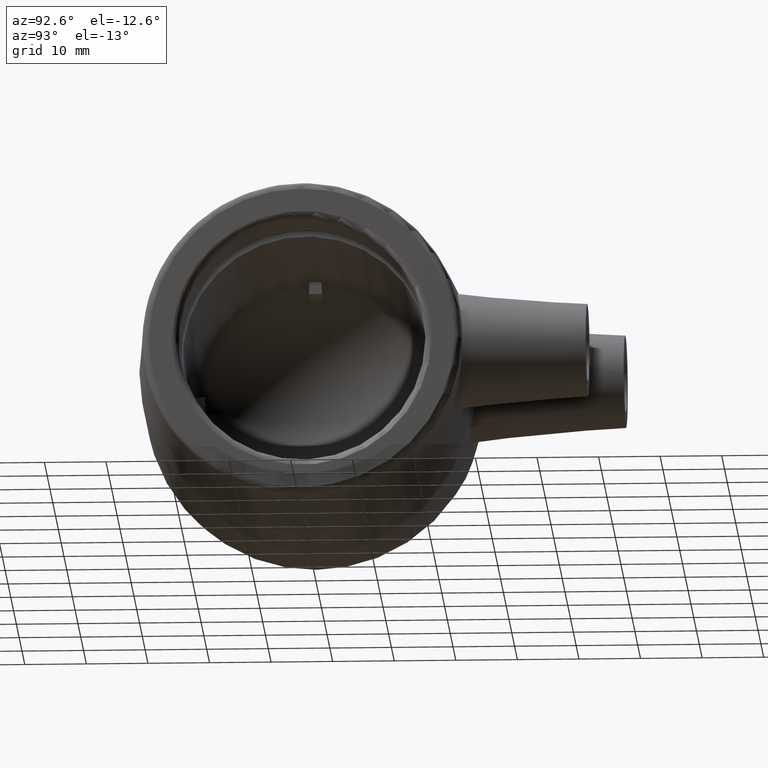
[diagram: clean part render]
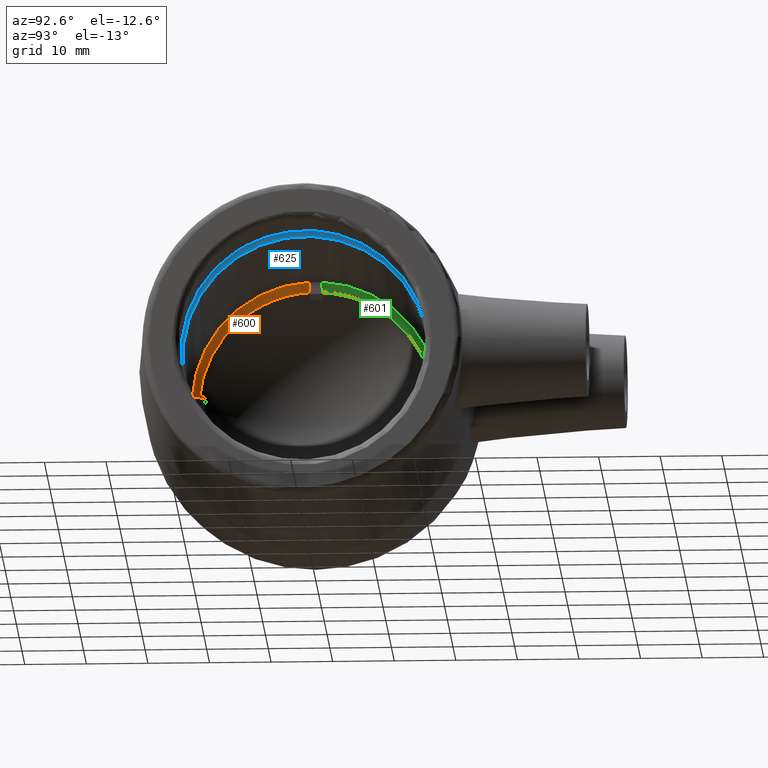
[diagram: same view with three faces highlighted in distinct colors, each labeled with its STEP entity id]
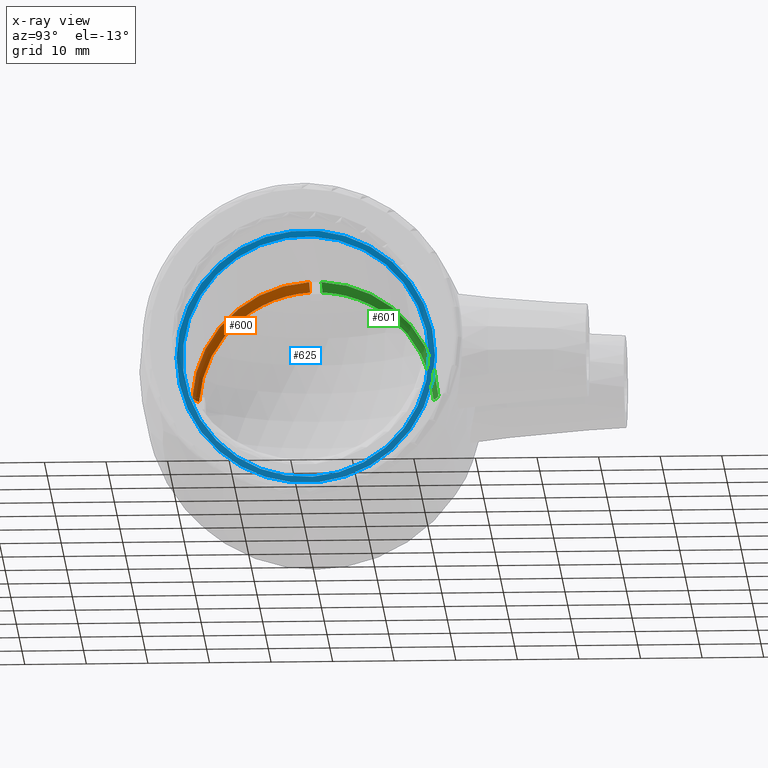
[diagram: x-ray of the same camera — body ghosted, the three highlighted faces saturated]
A machine part, auxiliary view with three faces highlighted in distinct colors.
The next image is the same camera in x-ray (body ghosted, the three faces saturated) — at least one of them is partly hidden behind the body in this view.
Their STEP definitions:

[orange] entity #600 — the highlighted toroidal blend (fillet) surface has major radius 13 mm and minor (blend) radius 7 mm.
#52=TOROIDAL_SURFACE('',#670,13.,7.);
#59=B_SPLINE_CURVE_WITH_KNOTS('',3,(#943,#944,#945,#946,#947,#948,#949,
#950),.UNSPECIFIED.,.F.,.F.,(4,2,2,4),(-0.347072642511362,-0.259029246738456,
-0.129514623369229,0.),.UNSPECIFIED.);
#66=B_SPLINE_CURVE_WITH_KNOTS('',3,(#1071,#1072,#1073,#1074,#1075,#1076,
#1077,#1078),.UNSPECIFIED.,.F.,.F.,(4,2,2,4),(0.,0.129514623369228,0.259029246738456,
0.347072642511361),.UNSPECIFIED.);
#126=FACE_OUTER_BOUND('',#171,.T.);
#171=EDGE_LOOP('',(#477,#478,#479,#480));
#235=CIRCLE('',#659,19.0599334073252);
#244=CIRCLE('',#671,20.);
#271=VERTEX_POINT('',#934);
#274=VERTEX_POINT('',#942);
#294=VERTEX_POINT('',#1044);
#299=VERTEX_POINT('',#1069);
#331=EDGE_CURVE('',#274,#271,#59,.T.);
#360=EDGE_CURVE('',#274,#294,#235,.T.);
#370=EDGE_CURVE('',#271,#299,#244,.T.);
#371=EDGE_CURVE('',#299,#294,#66,.T.);
#477=ORIENTED_EDGE('',*,*,#331,.T.);
#478=ORIENTED_EDGE('',*,*,#370,.T.);
#479=ORIENTED_EDGE('',*,*,#371,.T.);
#480=ORIENTED_EDGE('',*,*,#360,.F.);
#600=ADVANCED_FACE('',(#126),#52,.F.);
#659=AXIS2_PLACEMENT_3D('',#1045,#796,#797);
#670=AXIS2_PLACEMENT_3D('',#1068,#818,#819);
#671=AXIS2_PLACEMENT_3D('',#1070,#820,#821);
#796=DIRECTION('center_axis',(1.,2.83384649210207E-19,0.));
#797=DIRECTION('ref_axis',(0.,0.,-1.));
#818=DIRECTION('center_axis',(1.,2.83384649210207E-19,0.));
#819=DIRECTION('ref_axis',(0.,0.,-1.));
#820=DIRECTION('center_axis',(1.,2.83384649210207E-19,0.));
#821=DIRECTION('ref_axis',(0.,0.,-1.));
#934=CARTESIAN_POINT('',(-48.,-0.999999999999997,19.9749843554382));
#942=CARTESIAN_POINT('',(-51.503884572697,-0.999999999999997,19.0336822893435));
#943=CARTESIAN_POINT('Ctrl Pts',(-51.503884572697,-0.999999999999997,19.0336822893436));
#944=CARTESIAN_POINT('Ctrl Pts',(-51.2292260217304,-0.999999999999997,19.1927103002267));
#945=CARTESIAN_POINT('Ctrl Pts',(-50.9483526266836,-0.999999999999996,19.3297246128762));
#946=CARTESIAN_POINT('Ctrl Pts',(-50.2784246665355,-0.999999999999996,19.6073970664398));
#947=CARTESIAN_POINT('Ctrl Pts',(-49.8265540132172,-0.999999999999996,19.7485651499687));
#948=CARTESIAN_POINT('Ctrl Pts',(-48.9031994603803,-0.999999999999996,19.9323591703308));
#949=CARTESIAN_POINT('Ctrl Pts',(-48.4317154112308,-0.999999999999996,19.9749843554382));
#950=CARTESIAN_POINT('Ctrl Pts',(-48.,-0.999999999999996,19.9749843554382));
#1044=CARTESIAN_POINT('',(-51.503884572697,-19.0336822893435,1.));
#1045=CARTESIAN_POINT('Origin',(-51.503884572697,-1.45954102625967E-17,
0.));
#1068=CARTESIAN_POINT('Origin',(-48.,-1.360246316209E-17,0.));
#1069=CARTESIAN_POINT('',(-48.,-19.9749843554382,1.));
#1070=CARTESIAN_POINT('Origin',(-48.,-1.360246316209E-17,0.));
#1071=CARTESIAN_POINT('Ctrl Pts',(-48.,-19.9749843554382,1.));
#1072=CARTESIAN_POINT('Ctrl Pts',(-48.4317154112308,-19.9749843554382,1.));
#1073=CARTESIAN_POINT('Ctrl Pts',(-48.9031994603803,-19.9323591703308,1.));
#1074=CARTESIAN_POINT('Ctrl Pts',(-49.8265540132172,-19.7485651499687,1.));
#1075=CARTESIAN_POINT('Ctrl Pts',(-50.2784246665355,-19.6073970664398,1.));
#1076=CARTESIAN_POINT('Ctrl Pts',(-50.9483526266835,-19.3297246128762,1.));
#1077=CARTESIAN_POINT('Ctrl Pts',(-51.2292260217304,-19.1927103002267,1.));
#1078=CARTESIAN_POINT('Ctrl Pts',(-51.503884572697,-19.0336822893436,1.));

[blue] entity #625 — the highlighted planar face has unit normal (1, 0, 0).
#41=FACE_BOUND('',#217,.T.);
#151=FACE_OUTER_BOUND('',#216,.T.);
#216=EDGE_LOOP('',(#546));
#217=EDGE_LOOP('',(#547));
#266=CIRCLE('',#716,20.9919306211268);
#267=CIRCLE('',#718,20.);
#323=VERTEX_POINT('',#1249);
#324=VERTEX_POINT('',#1252);
#401=EDGE_CURVE('',#323,#323,#266,.T.);
#402=EDGE_CURVE('',#324,#324,#267,.T.);
#546=ORIENTED_EDGE('',*,*,#401,.T.);
#547=ORIENTED_EDGE('',*,*,#402,.F.);
#582=PLANE('',#717);
#625=ADVANCED_FACE('',(#151,#41),#582,.T.);
#716=AXIS2_PLACEMENT_3D('',#1250,#915,#916);
#717=AXIS2_PLACEMENT_3D('',#1251,#917,#918);
#718=AXIS2_PLACEMENT_3D('',#1253,#919,#920);
#915=DIRECTION('center_axis',(1.,2.83384649210207E-19,0.));
#916=DIRECTION('ref_axis',(0.,0.,-1.));
#917=DIRECTION('center_axis',(1.,2.83384649210207E-19,0.));
#918=DIRECTION('ref_axis',(0.,0.,-1.));
#919=DIRECTION('center_axis',(1.,2.83384649210207E-19,0.));
#920=DIRECTION('ref_axis',(0.,0.,-1.));
#1249=CARTESIAN_POINT('',(-14.,20.9919306211268,0.));
#1250=CARTESIAN_POINT('Origin',(-14.,-3.9673850889429E-18,0.));
#1251=CARTESIAN_POINT('Origin',(-14.,20.,0.));
#1252=CARTESIAN_POINT('',(-14.,20.,0.));
#1253=CARTESIAN_POINT('Origin',(-14.,-3.9673850889429E-18,0.));

[green] entity #601 — the highlighted toroidal blend (fillet) surface has major radius 13 mm and minor (blend) radius 7 mm.
#53=TOROIDAL_SURFACE('',#672,13.,7.);
#60=B_SPLINE_CURVE_WITH_KNOTS('',3,(#960,#961,#962,#963,#964,#965,#966,
#967),.UNSPECIFIED.,.F.,.F.,(4,2,2,4),(0.,0.129514623369228,0.259029246738456,
0.34707264251136),.UNSPECIFIED.);
#61=B_SPLINE_CURVE_WITH_KNOTS('',3,(#980,#981,#982,#983,#984,#985,#986,
#987),.UNSPECIFIED.,.F.,.F.,(4,2,2,4),(-0.347072642511362,-0.259029246738456,
-0.129514623369229,0.),.UNSPECIFIED.);
#127=FACE_OUTER_BOUND('',#172,.T.);
#172=EDGE_LOOP('',(#481,#482,#483,#484));
#241=CIRCLE('',#665,19.0599334073252);
#245=CIRCLE('',#673,20.);
#270=VERTEX_POINT('',#933);
#277=VERTEX_POINT('',#959);
#279=VERTEX_POINT('',#971);
#282=VERTEX_POINT('',#979);
#336=EDGE_CURVE('',#270,#277,#60,.T.);
#342=EDGE_CURVE('',#282,#279,#61,.T.);
#366=EDGE_CURVE('',#282,#277,#241,.T.);
#372=EDGE_CURVE('',#279,#270,#245,.T.);
#481=ORIENTED_EDGE('',*,*,#336,.T.);
#482=ORIENTED_EDGE('',*,*,#366,.F.);
#483=ORIENTED_EDGE('',*,*,#342,.T.);
#484=ORIENTED_EDGE('',*,*,#372,.T.);
#601=ADVANCED_FACE('',(#127),#53,.F.);
#665=AXIS2_PLACEMENT_3D('',#1054,#808,#809);
#672=AXIS2_PLACEMENT_3D('',#1079,#822,#823);
#673=AXIS2_PLACEMENT_3D('',#1080,#824,#825);
#808=DIRECTION('center_axis',(1.,2.83384649210207E-19,0.));
#809=DIRECTION('ref_axis',(0.,0.,-1.));
#822=DIRECTION('center_axis',(1.,2.83384649210207E-19,0.));
#823=DIRECTION('ref_axis',(0.,0.,-1.));
#824=DIRECTION('center_axis',(1.,2.83384649210207E-19,0.));
#825=DIRECTION('ref_axis',(0.,0.,-1.));
#933=CARTESIAN_POINT('',(-48.,1.,19.9749843554382));
#959=CARTESIAN_POINT('',(-51.503884572697,1.,19.0336822893435));
#960=CARTESIAN_POINT('Ctrl Pts',(-48.,1.,19.9749843554382));
#961=CARTESIAN_POINT('Ctrl Pts',(-48.4317154112308,1.,19.9749843554382));
#962=CARTESIAN_POINT('Ctrl Pts',(-48.9031994603803,1.,19.9323591703308));
#963=CARTESIAN_POINT('Ctrl Pts',(-49.8265540132172,1.,19.7485651499687));
#964=CARTESIAN_POINT('Ctrl Pts',(-50.2784246665355,1.,19.6073970664398));
#965=CARTESIAN_POINT('Ctrl Pts',(-50.9483526266836,1.,19.3297246128762));
#966=CARTESIAN_POINT('Ctrl Pts',(-51.2292260217304,1.,19.1927103002267));
#967=CARTESIAN_POINT('Ctrl Pts',(-51.503884572697,1.,19.0336822893436));
#971=CARTESIAN_POINT('',(-48.,19.9749843554382,0.999999999999998));
#979=CARTESIAN_POINT('',(-51.503884572697,19.0336822893435,0.999999999999998));
#980=CARTESIAN_POINT('Ctrl Pts',(-51.503884572697,19.0336822893436,0.999999999999998));
#981=CARTESIAN_POINT('Ctrl Pts',(-51.2292260217304,19.1927103002267,0.999999999999998));
#982=CARTESIAN_POINT('Ctrl Pts',(-50.9483526266836,19.3297246128762,0.999999999999998));
#983=CARTESIAN_POINT('Ctrl Pts',(-50.2784246665355,19.6073970664398,0.999999999999998));
#984=CARTESIAN_POINT('Ctrl Pts',(-49.8265540132172,19.7485651499687,0.999999999999998));
#985=CARTESIAN_POINT('Ctrl Pts',(-48.9031994603803,19.9323591703308,0.999999999999998));
#986=CARTESIAN_POINT('Ctrl Pts',(-48.4317154112308,19.9749843554382,0.999999999999998));
#987=CARTESIAN_POINT('Ctrl Pts',(-48.,19.9749843554382,0.999999999999998));
#1054=CARTESIAN_POINT('Origin',(-51.503884572697,-1.45954102625967E-17,
0.));
#1079=CARTESIAN_POINT('Origin',(-48.,-1.360246316209E-17,0.));
#1080=CARTESIAN_POINT('Origin',(-48.,-1.360246316209E-17,0.));